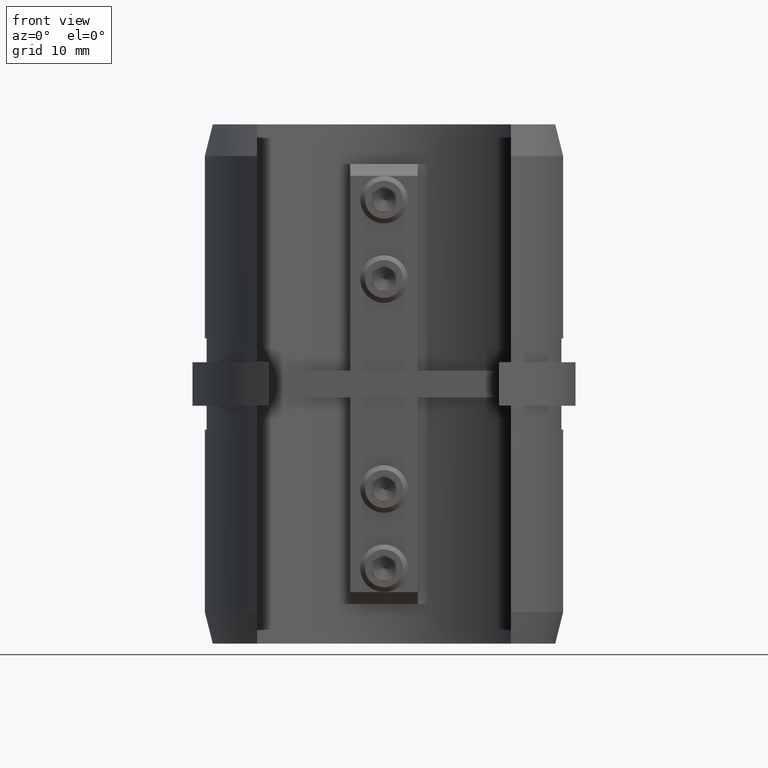
[diagram: clean part render]
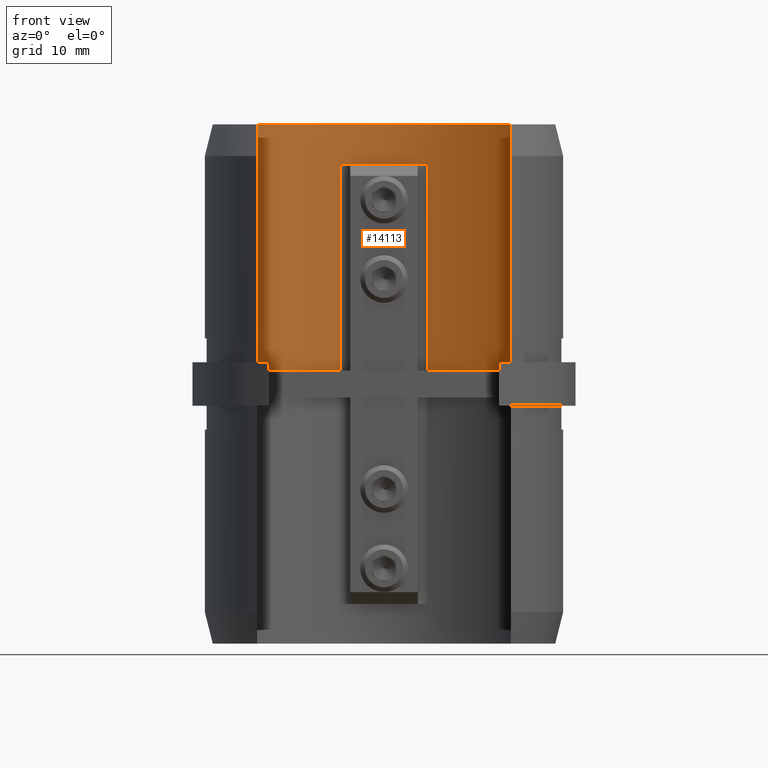
[diagram: same view with one face highlighted and labeled with its STEP entity id]
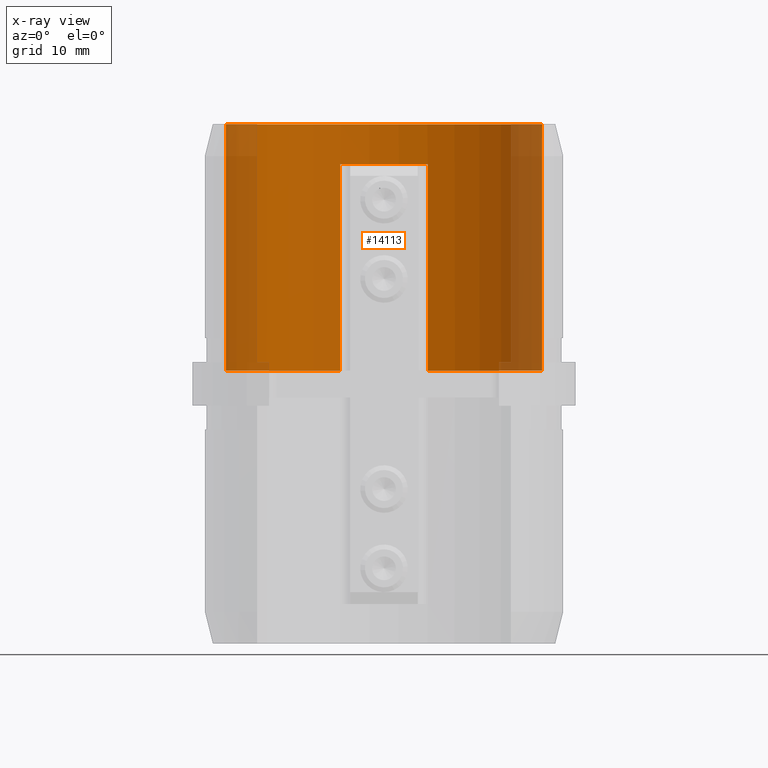
[diagram: x-ray of the same camera — body ghosted, the highlighted face saturated]
A machine part, front view. The second image highlights one B-rep face of the part: STEP entity #14113.
The next image is the same camera in x-ray: the body ghosted, the highlighted face saturated — about 26% of this face is hidden behind the body in this view.
In plain terms, the highlighted cylindrical surface (partial cylindrical patch) has radius 19.95 mm, axis along (-0, -0, -1).
Its self-contained STEP definition (entity closure, byte-faithful):
#69 = DIRECTION ( 'NONE',  ( 0.0000000000000000000, 0.0000000000000000000, -1.000000000000000000 ) ) ;
#398 = ORIENTED_EDGE ( 'NONE', *, *, #4870, .T. ) ;
#590 = VERTEX_POINT ( 'NONE', #5372 ) ;
#721 = CARTESIAN_POINT ( 'NONE',  ( -19.94999999999999900, -4.814824860968089600E-032, 1.700000000000000200 ) ) ;
#1787 = LINE ( 'NONE', #10881, #9868 ) ;
#1897 = DIRECTION ( 'NONE',  ( 0.0000000000000000000, 0.0000000000000000000, 1.000000000000000000 ) ) ;
#2316 = CARTESIAN_POINT ( 'NONE',  ( 0.0000000000000000000, 0.0000000000000000000, 32.75000000000000000 ) ) ;
#2573 = CARTESIAN_POINT ( 'NONE',  ( 0.0000000000000000000, 2.913276066525937600E-016, 1.700000000000000200 ) ) ;
#2631 = DIRECTION ( 'NONE',  ( -0.0000000000000000000, -0.0000000000000000000, -1.000000000000000000 ) ) ;
#3188 = VERTEX_POINT ( 'NONE', #9171 ) ;
#3279 = ORIENTED_EDGE ( 'NONE', *, *, #19168, .F. ) ;
#3512 = EDGE_CURVE ( 'NONE', #11947, #3188, #13064, .T. ) ;
#3802 = EDGE_CURVE ( 'NONE', #17691, #11947, #4222, .T. ) ;
#3904 = CIRCLE ( 'NONE', #17153, 19.94999999999999600 ) ;
#4151 = DIRECTION ( 'NONE',  ( -0.0000000000000000000, -0.0000000000000000000, -1.000000000000000000 ) ) ;
#4198 = LINE ( 'NONE', #18046, #11019 ) ;
#4211 = CARTESIAN_POINT ( 'NONE',  ( -5.527044854881262700, 19.16909687940802300, 1.700000000000000200 ) ) ;
#4222 = CIRCLE ( 'NONE', #19542, 19.94999999999999900 ) ;
#4243 = VECTOR ( 'NONE', #1897, 1000.000000000000000 ) ;
#4322 = DIRECTION ( 'NONE',  ( -0.0000000000000000000, -0.0000000000000000000, -1.000000000000000000 ) ) ;
#4525 = DIRECTION ( 'NONE',  ( 1.000000000000000000, 0.0000000000000000000, 0.0000000000000000000 ) ) ;
#4841 = EDGE_CURVE ( 'NONE', #3188, #18478, #17363, .T. ) ;
#4870 = EDGE_CURVE ( 'NONE', #18478, #10366, #4198, .T. ) ;
#5353 = ORIENTED_EDGE ( 'NONE', *, *, #17150, .T. ) ;
#5372 = CARTESIAN_POINT ( 'NONE',  ( 19.94999999999999600, 2.443170364298969000E-015, 32.75000000000000000 ) ) ;
#5681 = DIRECTION ( 'NONE',  ( -0.0000000000000000000, -0.0000000000000000000, -1.000000000000000000 ) ) ;
#5907 = CARTESIAN_POINT ( 'NONE',  ( -19.94999999999999600, 0.0000000000000000000, 32.75000000000000000 ) ) ;
#5929 = CARTESIAN_POINT ( 'NONE',  ( 5.527044854881269800, 19.16909687940802000, 27.75000000000000000 ) ) ;
#6623 = CARTESIAN_POINT ( 'NONE',  ( -5.527044854881262700, 19.16909687940802300, 32.75000000000000000 ) ) ;
#6792 = CARTESIAN_POINT ( 'NONE',  ( 0.0000000000000000000, 0.0000000000000000000, 27.75000000000000000 ) ) ;
#6964 = DIRECTION ( 'NONE',  ( -0.0000000000000000000, -0.0000000000000000000, -1.000000000000000000 ) ) ;
#7182 = DIRECTION ( 'NONE',  ( -1.000000000000000000, 0.0000000000000000000, 0.0000000000000000000 ) ) ;
#7488 = ORIENTED_EDGE ( 'NONE', *, *, #4841, .T. ) ;
#8130 = VECTOR ( 'NONE', #17032, 1000.000000000000000 ) ;
#8221 = DIRECTION ( 'NONE',  ( -1.000000000000000000, 0.0000000000000000000, 0.0000000000000000000 ) ) ;
#8701 = ORIENTED_EDGE ( 'NONE', *, *, #10159, .T. ) ;
#8763 = ORIENTED_EDGE ( 'NONE', *, *, #3802, .T. ) ;
#8866 = EDGE_CURVE ( 'NONE', #18634, #590, #11726, .T. ) ;
#9171 = CARTESIAN_POINT ( 'NONE',  ( -5.527044854881262700, 19.16909687940802300, 27.75000000000000000 ) ) ;
#9232 = CARTESIAN_POINT ( 'NONE',  ( -19.94999999999999600, 0.0000000000000000000, 32.75000000000000000 ) ) ;
#9643 = LINE ( 'NONE', #5907, #8130 ) ;
#9868 = VECTOR ( 'NONE', #2631, 1000.000000000000000 ) ;
#9954 = ORIENTED_EDGE ( 'NONE', *, *, #8866, .F. ) ;
#10067 = CARTESIAN_POINT ( 'NONE',  ( 0.0000000000000000000, 2.913276066525937600E-016, 1.700000000000000200 ) ) ;
#10159 = EDGE_CURVE ( 'NONE', #10366, #19287, #3904, .T. ) ;
#10366 = VERTEX_POINT ( 'NONE', #12881 ) ;
#10881 = CARTESIAN_POINT ( 'NONE',  ( 19.94999999999999600, 2.443170364298969000E-015, 32.75000000000000000 ) ) ;
#10951 = CARTESIAN_POINT ( 'NONE',  ( 19.94999999999999600, 2.443170364298969000E-015, 1.700000000000000200 ) ) ;
#11019 = VECTOR ( 'NONE', #16366, 1000.000000000000000 ) ;
#11726 = CIRCLE ( 'NONE', #15120, 19.94999999999999600 ) ;
#11947 = VERTEX_POINT ( 'NONE', #4211 ) ;
#12060 = DIRECTION ( 'NONE',  ( 1.000000000000000000, 0.0000000000000000000, 0.0000000000000000000 ) ) ;
#12881 = CARTESIAN_POINT ( 'NONE',  ( 5.527044854881269800, 19.16909687940802000, 1.700000000000000200 ) ) ;
#13064 = LINE ( 'NONE', #6623, #4243 ) ;
#13351 = AXIS2_PLACEMENT_3D ( 'NONE', #2316, #4151, #7182 ) ;
#13392 = DIRECTION ( 'NONE',  ( 1.000000000000000000, -1.776356839400250500E-015, 0.0000000000000000000 ) ) ;
#14113 = ADVANCED_FACE ( 'NONE', ( #19574 ), #17572, .F. ) ;
#14570 = EDGE_LOOP ( 'NONE', ( #3279, #9954, #5353, #8763, #17205, #7488, #398, #8701 ) ) ;
#15120 = AXIS2_PLACEMENT_3D ( 'NONE', #17189, #4322, #4525 ) ;
#16366 = DIRECTION ( 'NONE',  ( -0.0000000000000000000, -0.0000000000000000000, -1.000000000000000000 ) ) ;
#17032 = DIRECTION ( 'NONE',  ( -0.0000000000000000000, -0.0000000000000000000, -1.000000000000000000 ) ) ;
#17150 = EDGE_CURVE ( 'NONE', #18634, #17691, #9643, .T. ) ;
#17153 = AXIS2_PLACEMENT_3D ( 'NONE', #10067, #6964, #13392 ) ;
#17189 = CARTESIAN_POINT ( 'NONE',  ( 0.0000000000000000000, 0.0000000000000000000, 32.75000000000000000 ) ) ;
#17205 = ORIENTED_EDGE ( 'NONE', *, *, #3512, .T. ) ;
#17244 = AXIS2_PLACEMENT_3D ( 'NONE', #6792, #69, #8221 ) ;
#17363 = CIRCLE ( 'NONE', #17244, 19.94999999999999600 ) ;
#17572 = CYLINDRICAL_SURFACE ( 'NONE', #13351, 19.94999999999999600 ) ;
#17691 = VERTEX_POINT ( 'NONE', #721 ) ;
#18046 = CARTESIAN_POINT ( 'NONE',  ( 5.527044854881269800, 19.16909687940802000, 32.75000000000000000 ) ) ;
#18478 = VERTEX_POINT ( 'NONE', #5929 ) ;
#18634 = VERTEX_POINT ( 'NONE', #9232 ) ;
#19168 = EDGE_CURVE ( 'NONE', #590, #19287, #1787, .T. ) ;
#19287 = VERTEX_POINT ( 'NONE', #10951 ) ;
#19542 = AXIS2_PLACEMENT_3D ( 'NONE', #2573, #5681, #12060 ) ;
#19574 = FACE_OUTER_BOUND ( 'NONE', #14570, .T. ) ;